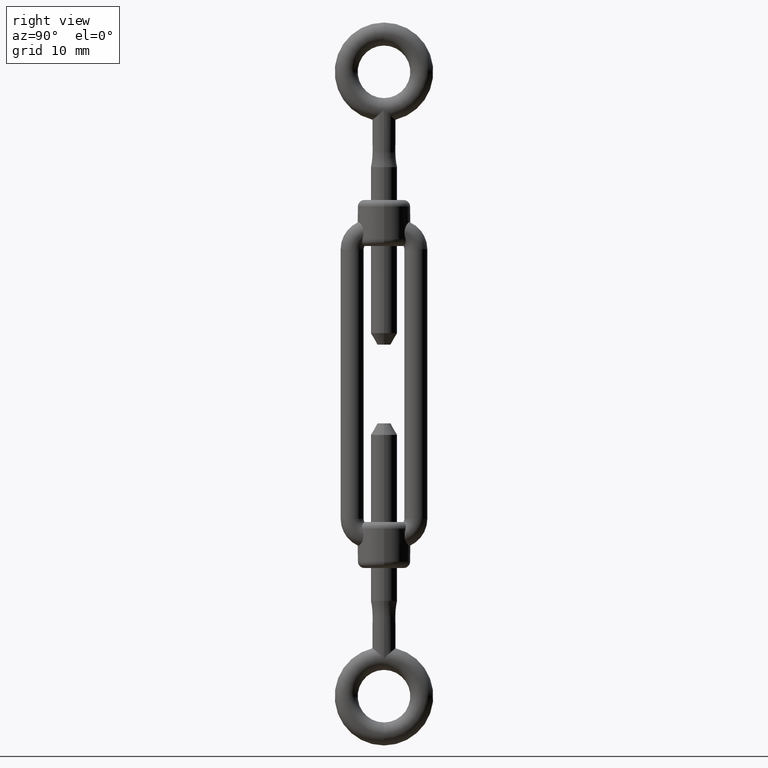
[diagram: clean part render]
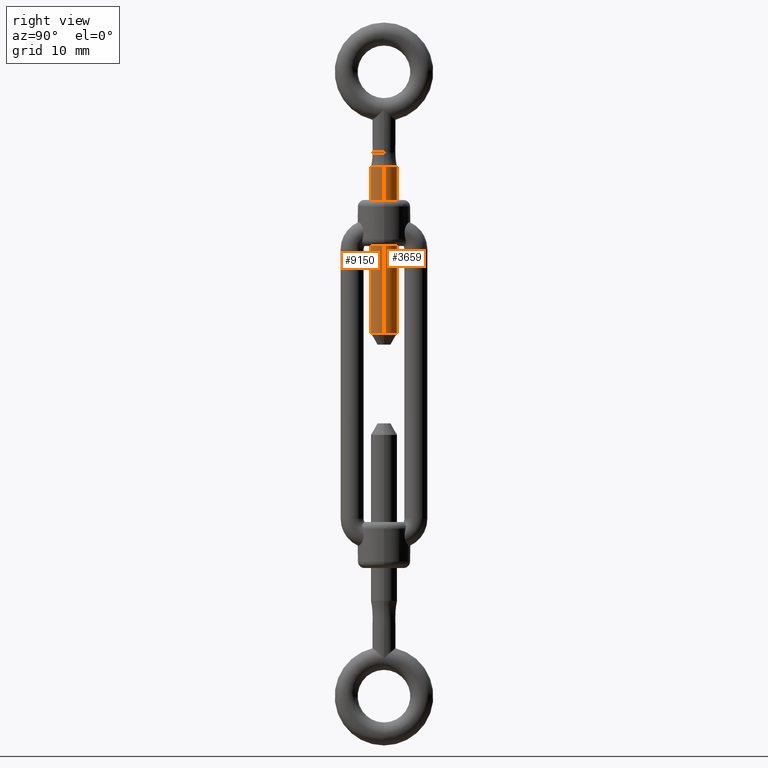
[diagram: same view with one multi-face feature highlighted, each face labeled with its STEP entity id]
A machine part, right view. The highlighted faces form ONE feature: a constant-radius fillet chain: 2 tangent blend faces with common blend radius 2 mm. The faces share edges in the B-rep.
Their STEP definitions:
[1] entity #3659 (Cylinder):
#431 = FACE_OUTER_BOUND ( 'NONE', #8364, .T. ) ;
#730 = VERTEX_POINT ( 'NONE', #9088 ) ;
#895 = ORIENTED_EDGE ( 'NONE', *, *, #9395, .T. ) ;
#1346 = CARTESIAN_POINT ( 'NONE',  ( 0.0000000000000000000, -22.00000000000000400, -2.000000000000000000 ) ) ;
#1491 = VERTEX_POINT ( 'NONE', #14613 ) ;
#2510 = CARTESIAN_POINT ( 'NONE',  ( 0.0000000000000000000, -22.00000000000000400, -2.000000000000000000 ) ) ;
#3659 = ADVANCED_FACE ( 'NONE', ( #431 ), #15523, .T. ) ;
#3721 = ORIENTED_EDGE ( 'NONE', *, *, #12021, .F. ) ;
#3733 = AXIS2_PLACEMENT_3D ( 'NONE', #12667, #6419, #7304 ) ;
#3763 = DIRECTION ( 'NONE',  ( 0.0000000000000000000, 0.0000000000000000000, -1.000000000000000000 ) ) ;
#4658 = LINE ( 'NONE', #16016, #17081 ) ;
#4985 = DIRECTION ( 'NONE',  ( 0.0000000000000000000, 0.0000000000000000000, 1.000000000000000000 ) ) ;
#5347 = VECTOR ( 'NONE', #7814, 1000.000000000000000 ) ;
#6419 = DIRECTION ( 'NONE',  ( 0.0000000000000000000, 1.000000000000000000, 0.0000000000000000000 ) ) ;
#7275 = CARTESIAN_POINT ( 'NONE',  ( 2.449293598294706400E-016, -47.26794919243114600, 2.000000000000000000 ) ) ;
#7304 = DIRECTION ( 'NONE',  ( 0.0000000000000000000, 0.0000000000000000000, 1.000000000000000000 ) ) ;
#7576 = VERTEX_POINT ( 'NONE', #7275 ) ;
#7814 = DIRECTION ( 'NONE',  ( -0.0000000000000000000, -1.000000000000000000, -0.0000000000000000000 ) ) ;
#8349 = ORIENTED_EDGE ( 'NONE', *, *, #11352, .T. ) ;
#8364 = EDGE_LOOP ( 'NONE', ( #9947, #3721, #8349, #895 ) ) ;
#8812 = CARTESIAN_POINT ( 'NONE',  ( 0.0000000000000000000, -22.00000000000000400, 0.0000000000000000000 ) ) ;
#9088 = CARTESIAN_POINT ( 'NONE',  ( 0.0000000000000000000, -47.26794919243114600, -2.000000000000000000 ) ) ;
#9395 = EDGE_CURVE ( 'NONE', #730, #7576, #10129, .T. ) ;
#9947 = ORIENTED_EDGE ( 'NONE', *, *, #14116, .F. ) ;
#10129 = CIRCLE ( 'NONE', #10451, 2.000000000000000000 ) ;
#10222 = DIRECTION ( 'NONE',  ( -0.0000000000000000000, -1.000000000000000000, -0.0000000000000000000 ) ) ;
#10283 = CARTESIAN_POINT ( 'NONE',  ( 0.0000000000000000000, -47.26794919243114600, 0.0000000000000000000 ) ) ;
#10451 = AXIS2_PLACEMENT_3D ( 'NONE', #10283, #17006, #4985 ) ;
#11268 = AXIS2_PLACEMENT_3D ( 'NONE', #8812, #10222, #3763 ) ;
#11352 = EDGE_CURVE ( 'NONE', #16798, #730, #14467, .T. ) ;
#12021 = EDGE_CURVE ( 'NONE', #16798, #1491, #16907, .T. ) ;
#12667 = CARTESIAN_POINT ( 'NONE',  ( 0.0000000000000000000, -22.00000000000000400, 0.0000000000000000000 ) ) ;
#14116 = EDGE_CURVE ( 'NONE', #1491, #7576, #4658, .T. ) ;
#14467 = LINE ( 'NONE', #2510, #5347 ) ;
#14613 = CARTESIAN_POINT ( 'NONE',  ( 2.449293598294706400E-016, -22.00000000000000400, 2.000000000000000000 ) ) ;
#15523 = CYLINDRICAL_SURFACE ( 'NONE', #11268, 2.000000000000000000 ) ;
#15784 = DIRECTION ( 'NONE',  ( -0.0000000000000000000, -1.000000000000000000, -0.0000000000000000000 ) ) ;
#16016 = CARTESIAN_POINT ( 'NONE',  ( 2.449293598294706400E-016, -22.00000000000000400, 2.000000000000000000 ) ) ;
#16798 = VERTEX_POINT ( 'NONE', #1346 ) ;
#16907 = CIRCLE ( 'NONE', #3733, 2.000000000000000000 ) ;
#17006 = DIRECTION ( 'NONE',  ( -0.0000000000000000000, 1.000000000000000000, -0.0000000000000000000 ) ) ;
#17081 = VECTOR ( 'NONE', #15784, 1000.000000000000000 ) ;
[2] entity #9150 (Cylinder):
#730 = VERTEX_POINT ( 'NONE', #9088 ) ;
#890 = DIRECTION ( 'NONE',  ( 0.0000000000000000000, 0.0000000000000000000, 1.000000000000000000 ) ) ;
#1346 = CARTESIAN_POINT ( 'NONE',  ( 0.0000000000000000000, -22.00000000000000400, -2.000000000000000000 ) ) ;
#1491 = VERTEX_POINT ( 'NONE', #14613 ) ;
#2510 = CARTESIAN_POINT ( 'NONE',  ( 0.0000000000000000000, -22.00000000000000400, -2.000000000000000000 ) ) ;
#3455 = ORIENTED_EDGE ( 'NONE', *, *, #14116, .T. ) ;
#3654 = EDGE_CURVE ( 'NONE', #1491, #16798, #7439, .T. ) ;
#3946 = CYLINDRICAL_SURFACE ( 'NONE', #17005, 2.000000000000000000 ) ;
#4335 = DIRECTION ( 'NONE',  ( -0.0000000000000000000, 1.000000000000000000, -0.0000000000000000000 ) ) ;
#4658 = LINE ( 'NONE', #16016, #17081 ) ;
#5347 = VECTOR ( 'NONE', #7814, 1000.000000000000000 ) ;
#5368 = ORIENTED_EDGE ( 'NONE', *, *, #8555, .T. ) ;
#7275 = CARTESIAN_POINT ( 'NONE',  ( 2.449293598294706400E-016, -47.26794919243114600, 2.000000000000000000 ) ) ;
#7439 = CIRCLE ( 'NONE', #12077, 2.000000000000000000 ) ;
#7576 = VERTEX_POINT ( 'NONE', #7275 ) ;
#7724 = CARTESIAN_POINT ( 'NONE',  ( 0.0000000000000000000, -22.00000000000000400, 0.0000000000000000000 ) ) ;
#7814 = DIRECTION ( 'NONE',  ( -0.0000000000000000000, -1.000000000000000000, -0.0000000000000000000 ) ) ;
#8046 = ORIENTED_EDGE ( 'NONE', *, *, #11352, .F. ) ;
#8555 = EDGE_CURVE ( 'NONE', #7576, #730, #16469, .T. ) ;
#9088 = CARTESIAN_POINT ( 'NONE',  ( 0.0000000000000000000, -47.26794919243114600, -2.000000000000000000 ) ) ;
#9150 = ADVANCED_FACE ( 'NONE', ( #16568 ), #3946, .T. ) ;
#10078 = DIRECTION ( 'NONE',  ( -0.0000000000000000000, -1.000000000000000000, -0.0000000000000000000 ) ) ;
#10950 = DIRECTION ( 'NONE',  ( 0.0000000000000000000, 0.0000000000000000000, 1.000000000000000000 ) ) ;
#11336 = EDGE_LOOP ( 'NONE', ( #12222, #3455, #5368, #8046 ) ) ;
#11352 = EDGE_CURVE ( 'NONE', #16798, #730, #14467, .T. ) ;
#11763 = AXIS2_PLACEMENT_3D ( 'NONE', #14915, #4335, #10950 ) ;
#12077 = AXIS2_PLACEMENT_3D ( 'NONE', #7724, #17000, #890 ) ;
#12222 = ORIENTED_EDGE ( 'NONE', *, *, #3654, .F. ) ;
#14116 = EDGE_CURVE ( 'NONE', #1491, #7576, #4658, .T. ) ;
#14467 = LINE ( 'NONE', #2510, #5347 ) ;
#14613 = CARTESIAN_POINT ( 'NONE',  ( 2.449293598294706400E-016, -22.00000000000000400, 2.000000000000000000 ) ) ;
#14915 = CARTESIAN_POINT ( 'NONE',  ( 0.0000000000000000000, -47.26794919243114600, 0.0000000000000000000 ) ) ;
#14950 = CARTESIAN_POINT ( 'NONE',  ( 0.0000000000000000000, -22.00000000000000400, 0.0000000000000000000 ) ) ;
#15412 = DIRECTION ( 'NONE',  ( 0.0000000000000000000, 0.0000000000000000000, -1.000000000000000000 ) ) ;
#15784 = DIRECTION ( 'NONE',  ( -0.0000000000000000000, -1.000000000000000000, -0.0000000000000000000 ) ) ;
#16016 = CARTESIAN_POINT ( 'NONE',  ( 2.449293598294706400E-016, -22.00000000000000400, 2.000000000000000000 ) ) ;
#16469 = CIRCLE ( 'NONE', #11763, 2.000000000000000000 ) ;
#16568 = FACE_OUTER_BOUND ( 'NONE', #11336, .T. ) ;
#16798 = VERTEX_POINT ( 'NONE', #1346 ) ;
#17000 = DIRECTION ( 'NONE',  ( 0.0000000000000000000, 1.000000000000000000, 0.0000000000000000000 ) ) ;
#17005 = AXIS2_PLACEMENT_3D ( 'NONE', #14950, #10078, #15412 ) ;
#17081 = VECTOR ( 'NONE', #15784, 1000.000000000000000 ) ;